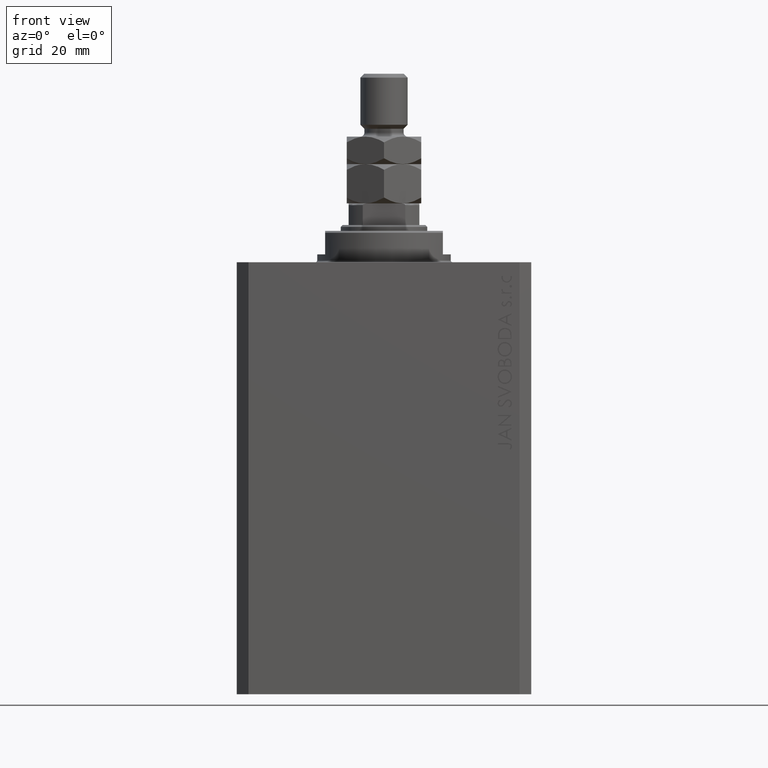
[diagram: clean part render]
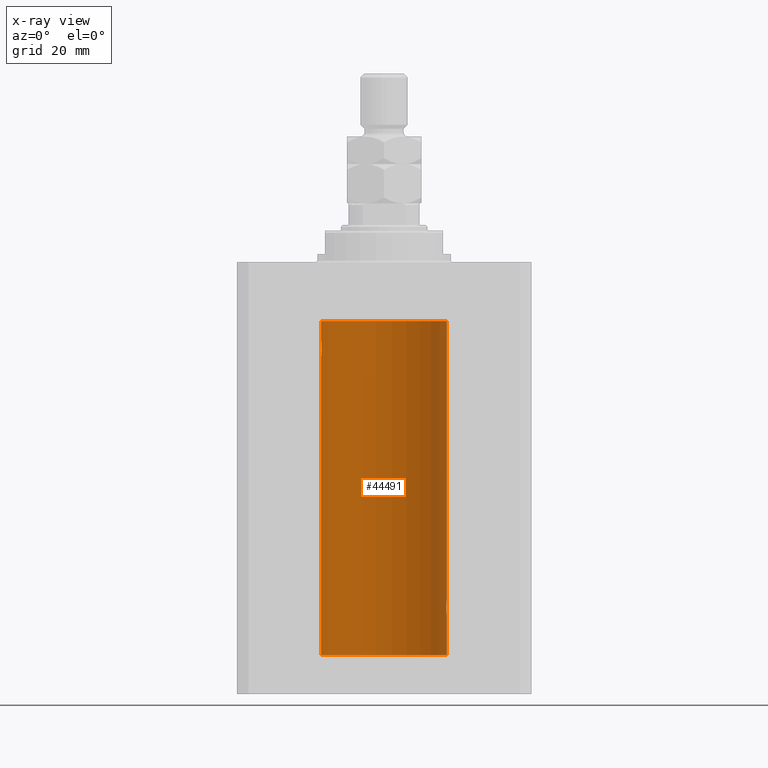
[diagram: x-ray — body ghosted, one internal face saturated and labeled with its STEP entity id]
A machine part, front view, then the same camera in x-ray: the body is ghosted and one INTERNAL B-rep face — a face not visible from any outside direction — is saturated and labeled: STEP entity #44491.
In plain terms, the highlighted cylindrical surface (partial cylindrical patch) has radius 16 mm, axis along (0, 0, 1).
Its self-contained STEP definition (entity closure, byte-faithful):
#1509 = CARTESIAN_POINT ( 'NONE',  ( 15.95380611548778660, 1.219810915946573759, -89.59032870701324214 ) ) ;
#1916 = VERTEX_POINT ( 'NONE', #5781 ) ;
#2023 = VERTEX_POINT ( 'NONE', #3538 ) ;
#2177 = CYLINDRICAL_SURFACE ( 'NONE', #16053, 16.00000000000000000 ) ;
#2767 = CARTESIAN_POINT ( 'NONE',  ( -16.00000000000000000, 1.959434878635765131E-15, -15.00000000000000000 ) ) ;
#2859 = CARTESIAN_POINT ( 'NONE',  ( -15.92092783521423272, 1.590393755196006786, -23.21967657442277755 ) ) ;
#2912 = CARTESIAN_POINT ( 'NONE',  ( 15.99834953062734222, 0.2631943783489354982, -86.01308452963878892 ) ) ;
#3031 = B_SPLINE_CURVE_WITH_KNOTS ( 'NONE', 3,
 ( #5890, #37407, #40850, #29301, #17020, #18665, #18418, #17934, #33705, #21877, #48256, #14472, #44791, #26067, #7292, #20966, #22357, #32079, #28134, #2859, #43155, #36008, #13303, #28376, #43400, #32984, #48007, #14225, #44313, #10515 ),
 .UNSPECIFIED., .F., .F.,
 ( 4, 2, 2, 2, 2, 2, 2, 2, 2, 2, 2, 2, 2, 2, 4 ),
 ( 7.909002969168862706E-19, 0.0003911894522871180884, 0.0007823789045742353095, 0.001173568356861352802, 0.001564757809148469968, 0.002347136713722698664, 0.003129515618296926493, 0.003520705070584046262, 0.003911894522871165597, 0.004303083975158284932, 0.004694273427445404268, 0.005085462879732523603, 0.005476652332019642938, 0.005867841784306762273, 0.006259031236593881609 ),
 .UNSPECIFIED. ) ;
#3156 = CARTESIAN_POINT ( 'NONE',  ( 15.87450786638751055, 2.000000000000297984, -87.86943869497294202 ) ) ;
#3403 = CARTESIAN_POINT ( 'NONE',  ( 15.88249567060696243, 1.935716055827872539, -87.48027816021618719 ) ) ;
#3538 = CARTESIAN_POINT ( 'NONE',  ( 16.00000000000000000, 0.000000000000000000, -100.0999999999999943 ) ) ;
#3557 = B_SPLINE_CURVE_WITH_KNOTS ( 'NONE', 3,
 ( #29602, #3156, #33036, #3403, #25637, #40675, #25389, #36742, #6866, #18227, #29109, #21691, #13797, #21445, #48314, #2912, #14773, #18477 ),
 .UNSPECIFIED., .F., .F.,
 ( 4, 2, 2, 2, 2, 2, 2, 2, 4 ),
 ( 0.003130250677538718058, 0.003521348247420690372, 0.003912445817302662686, 0.004303543387184635000, 0.004694640957066607313, 0.005085738526948579627, 0.005476836096830552808, 0.005867933666712525122, 0.006259031236594497435 ),
 .UNSPECIFIED. ) ;
#5206 = CARTESIAN_POINT ( 'NONE',  ( 15.88135773388169092, 1.947448446433282854, -88.52472455433247944 ) ) ;
#5781 = CARTESIAN_POINT ( 'NONE',  ( -16.00000000000000000, 8.139613661842072923E-16, -20.00000000000000000 ) ) ;
#5890 = CARTESIAN_POINT ( 'NONE',  ( -16.00000000000000000, 8.139613661842072923E-16, -20.00000000000000000 ) ) ;
#6866 = CARTESIAN_POINT ( 'NONE',  ( 15.92911104305801828, 1.507378839264603476, -86.67893664295412748 ) ) ;
#7099 = CARTESIAN_POINT ( 'NONE',  ( 16.00000000000000000, 3.524002214059393877E-15, -90.00000000000000000 ) ) ;
#7191 = VERTEX_POINT ( 'NONE', #34252 ) ;
#7199 = AXIS2_PLACEMENT_3D ( 'NONE', #34834, #31638, #35087 ) ;
#7292 = CARTESIAN_POINT ( 'NONE',  ( -15.87616016863256618, 1.987008272775798723, -22.26251583007899626 ) ) ;
#7853 = LINE ( 'NONE', #23405, #27016 ) ;
#10515 = CARTESIAN_POINT ( 'NONE',  ( -16.00000000000000000, 1.959434851239607631E-15, -23.99999999999999645 ) ) ;
#10821 = DIRECTION ( 'NONE',  ( -0.000000000000000000, -0.000000000000000000, 1.000000000000000000 ) ) ;
#11194 = ORIENTED_EDGE ( 'NONE', *, *, #15640, .T. ) ;
#11807 = B_SPLINE_CURVE_WITH_KNOTS ( 'NONE', 3,
 ( #28670, #16813, #24702, #39756, #13107, #43688, #31634, #1509, #46404, #12615, #27682, #5206, #16564, #46652 ),
 .UNSPECIFIED., .F., .F.,
 ( 4, 2, 2, 2, 2, 2, 4 ),
 ( 3.424160547694500162E-18, 0.0003912813346923356916, 0.0007825626693846680221, 0.001173844004077000082, 0.001565125338769331924, 0.002347688008154024883, 0.003130250677538718058 ),
 .UNSPECIFIED. ) ;
#12615 = CARTESIAN_POINT ( 'NONE',  ( 15.92096875784782739, 1.599058044721133331, -89.22922593843965444 ) ) ;
#13107 = CARTESIAN_POINT ( 'NONE',  ( 15.98743782203464825, 0.6453927552190293904, -89.89754035852679692 ) ) ;
#13303 = CARTESIAN_POINT ( 'NONE',  ( -15.95377581882983442, 1.220169175415122931, -23.59001528100121803 ) ) ;
#13797 = CARTESIAN_POINT ( 'NONE',  ( 15.97588373855009536, 0.8864683965309503311, -86.20240655627672766 ) ) ;
#14185 = ORIENTED_EDGE ( 'NONE', *, *, #22660, .F. ) ;
#14225 = CARTESIAN_POINT ( 'NONE',  ( -15.99834873924246104, 0.2632563459770838055, -23.98690924832126115 ) ) ;
#14251 = VERTEX_POINT ( 'NONE', #42146 ) ;
#14472 = CARTESIAN_POINT ( 'NONE',  ( -15.88137861827787134, 1.947280337074169587, -21.47468243540596333 ) ) ;
#14773 = CARTESIAN_POINT ( 'NONE',  ( 16.00000000000000000, 0.1305637488590863926, -85.99999999999998579 ) ) ;
#15640 = EDGE_CURVE ( 'NONE', #1916, #44397, #3031, .T. ) ;
#16053 = AXIS2_PLACEMENT_3D ( 'NONE', #39707, #29355, #44367 ) ;
#16564 = CARTESIAN_POINT ( 'NONE',  ( 15.87450786638751410, 2.000000000000297096, -88.26124530359815878 ) ) ;
#16813 = CARTESIAN_POINT ( 'NONE',  ( 15.99999999999999645, 0.1323149458028788361, -90.00000000000002842 ) ) ;
#17020 = CARTESIAN_POINT ( 'NONE',  ( -15.98744362947834929, 0.6452446332038160870, -20.10241129944407490 ) ) ;
#17934 = CARTESIAN_POINT ( 'NONE',  ( -15.95382484008323409, 1.219564485341772198, -20.40948495147901554 ) ) ;
#18227 = CARTESIAN_POINT ( 'NONE',  ( 15.94566414814287469, 1.320819617421907788, -86.49240758272487994 ) ) ;
#18418 = CARTESIAN_POINT ( 'NONE',  ( -15.96895041604535770, 1.002241074716284874, -20.26431901501738153 ) ) ;
#18477 = CARTESIAN_POINT ( 'NONE',  ( 16.00000000000000000, -2.738688404655786685E-23, -86.00000000000000000 ) ) ;
#18665 = CARTESIAN_POINT ( 'NONE',  ( -15.97583181162461052, 0.8874076679346778462, -20.20286585251778888 ) ) ;
#19754 = ORIENTED_EDGE ( 'NONE', *, *, #40577, .T. ) ;
#19821 = CIRCLE ( 'NONE', #7199, 16.00000000000000000 ) ;
#20966 = CARTESIAN_POINT ( 'NONE',  ( -15.88247600692092831, 1.935876924222084350, -22.51913097710111700 ) ) ;
#21135 = VERTEX_POINT ( 'NONE', #7099 ) ;
#21178 = CIRCLE ( 'NONE', #25121, 16.00000000000000000 ) ;
#21445 = CARTESIAN_POINT ( 'NONE',  ( 15.98747899434752817, 0.6443623600228916004, -86.10211550510818768 ) ) ;
#21691 = CARTESIAN_POINT ( 'NONE',  ( 15.96887171920781689, 1.003448269354837441, -86.26505182542071282 ) ) ;
#21877 = CARTESIAN_POINT ( 'NONE',  ( -15.92099550861380131, 1.598790766515155282, -20.77043888260214644 ) ) ;
#22357 = CARTESIAN_POINT ( 'NONE',  ( -15.88709929148890510, 1.898058445420892637, -22.64386968033013403 ) ) ;
#22384 = VERTEX_POINT ( 'NONE', #24181 ) ;
#22572 = ORIENTED_EDGE ( 'NONE', *, *, #38387, .F. ) ;
#22660 = EDGE_CURVE ( 'NONE', #1916, #34272, #29609, .T. ) ;
#23405 = CARTESIAN_POINT ( 'NONE',  ( 16.00000000000000000, 0.000000000000000000, -100.0999999999999943 ) ) ;
#23617 = DIRECTION ( 'NONE',  ( -0.000000000000000000, -0.000000000000000000, 1.000000000000000000 ) ) ;
#24181 = CARTESIAN_POINT ( 'NONE',  ( 16.00000000000000000, -2.738688404655786685E-23, -86.00000000000000000 ) ) ;
#24702 = CARTESIAN_POINT ( 'NONE',  ( 15.99836014839681830, 0.2623923436743452187, -89.98699919334814012 ) ) ;
#25003 = DIRECTION ( 'NONE',  ( 1.000000000000000000, 0.000000000000000000, 0.000000000000000000 ) ) ;
#25121 = AXIS2_PLACEMENT_3D ( 'NONE', #28729, #43251, #25003 ) ;
#25389 = CARTESIAN_POINT ( 'NONE',  ( 15.90582997788426312, 1.734897462761020082, -86.99646332855050446 ) ) ;
#25637 = CARTESIAN_POINT ( 'NONE',  ( 15.88712192135845491, 1.897869642555071179, -87.35557946728211220 ) ) ;
#26067 = CARTESIAN_POINT ( 'NONE',  ( -15.87450182760079542, 2.000047931387149092, -22.12985308350499380 ) ) ;
#26453 = CARTESIAN_POINT ( 'NONE',  ( -16.00000000000000000, 1.959434878635765131E-15, -100.0999999999999943 ) ) ;
#26500 = ORIENTED_EDGE ( 'NONE', *, *, #41897, .T. ) ;
#27016 = VECTOR ( 'NONE', #46091, 1000.000000000000000 ) ;
#27571 = EDGE_CURVE ( 'NONE', #7191, #44397, #38510, .T. ) ;
#27682 = CARTESIAN_POINT ( 'NONE',  ( 15.90454527605181667, 1.748004143318092174, -89.00616739381551668 ) ) ;
#28134 = CARTESIAN_POINT ( 'NONE',  ( -15.90580292899658055, 1.735145127817749655, -23.00311247035039486 ) ) ;
#28218 = EDGE_CURVE ( 'NONE', #46797, #34272, #21178, .T. ) ;
#28376 = CARTESIAN_POINT ( 'NONE',  ( -15.96885838080210362, 1.003662148334370174, -23.73482670674955486 ) ) ;
#28670 = CARTESIAN_POINT ( 'NONE',  ( 16.00000000000000000, 3.524002214059393877E-15, -90.00000000000000000 ) ) ;
#28729 = CARTESIAN_POINT ( 'NONE',  ( 0.000000000000000000, 0.000000000000000000, -15.00000000000000000 ) ) ;
#28872 = FACE_OUTER_BOUND ( 'NONE', #38843, .T. ) ;
#29109 = CARTESIAN_POINT ( 'NONE',  ( 15.95379436193629985, 1.219925354616377966, -86.40980009844315646 ) ) ;
#29229 = CARTESIAN_POINT ( 'NONE',  ( 16.00000000000000000, 0.000000000000000000, -100.0999999999999943 ) ) ;
#29301 = CARTESIAN_POINT ( 'NONE',  ( -15.99211983514074298, 0.5181437283162074747, -20.06388673317935911 ) ) ;
#29355 = DIRECTION ( 'NONE',  ( -0.000000000000000000, -0.000000000000000000, 1.000000000000000000 ) ) ;
#29602 = CARTESIAN_POINT ( 'NONE',  ( 15.87450786638750699, 2.000000000000297096, -88.00000000000000000 ) ) ;
#29609 = LINE ( 'NONE', #45099, #39449 ) ;
#31634 = CARTESIAN_POINT ( 'NONE',  ( 15.96893716441426214, 1.002454028984434808, -89.73556042441214231 ) ) ;
#31638 = DIRECTION ( 'NONE',  ( 0.000000000000000000, 0.000000000000000000, 1.000000000000000000 ) ) ;
#31649 = VECTOR ( 'NONE', #23617, 1000.000000000000000 ) ;
#31993 = ORIENTED_EDGE ( 'NONE', *, *, #35635, .T. ) ;
#32079 = CARTESIAN_POINT ( 'NONE',  ( -15.89876304682112362, 1.797743958659264507, -22.88617757057269841 ) ) ;
#32984 = CARTESIAN_POINT ( 'NONE',  ( -15.98747331501412461, 0.6445079780200578812, -23.89783726498894723 ) ) ;
#33036 = CARTESIAN_POINT ( 'NONE',  ( 15.87617168140110380, 1.986916736633999037, -87.73680934434936773 ) ) ;
#33705 = CARTESIAN_POINT ( 'NONE',  ( -15.94553003295877680, 1.322357532253827461, -20.49389287531754889 ) ) ;
#34252 = CARTESIAN_POINT ( 'NONE',  ( -16.00000000000000000, 1.959434878635765131E-15, -100.0999999999999943 ) ) ;
#34272 = VERTEX_POINT ( 'NONE', #2767 ) ;
#34479 = ORIENTED_EDGE ( 'NONE', *, *, #28218, .T. ) ;
#34834 = CARTESIAN_POINT ( 'NONE',  ( 0.000000000000000000, 0.000000000000000000, -100.0999999999999943 ) ) ;
#35087 = DIRECTION ( 'NONE',  ( 1.000000000000000000, 0.000000000000000000, 0.000000000000000000 ) ) ;
#35635 = EDGE_CURVE ( 'NONE', #2023, #21135, #42600, .T. ) ;
#36008 = CARTESIAN_POINT ( 'NONE',  ( -15.94564302722881877, 1.321075116345886924, -23.50737160312428742 ) ) ;
#36742 = CARTESIAN_POINT ( 'NONE',  ( 15.92095407913750726, 1.590131347295332009, -86.77998469042918828 ) ) ;
#37407 = CARTESIAN_POINT ( 'NONE',  ( -15.99999999999999645, 0.1322838750249263340, -20.00000000000000000 ) ) ;
#38387 = EDGE_CURVE ( 'NONE', #2023, #7191, #19821, .T. ) ;
#38510 = LINE ( 'NONE', #26453, #46337 ) ;
#38843 = EDGE_LOOP ( 'NONE', ( #43478, #22572, #31993, #19754, #26500, #44453, #34479, #14185, #11194 ) ) ;
#39449 = VECTOR ( 'NONE', #10821, 1000.000000000000000 ) ;
#39707 = CARTESIAN_POINT ( 'NONE',  ( 0.000000000000000000, 0.000000000000000000, -100.0999999999999943 ) ) ;
#39756 = CARTESIAN_POINT ( 'NONE',  ( 15.99211620657850474, 0.5182628822511399225, -89.93608344894170159 ) ) ;
#40577 = EDGE_CURVE ( 'NONE', #21135, #14251, #11807, .T. ) ;
#40675 = CARTESIAN_POINT ( 'NONE',  ( 15.89878974374255449, 1.797508500259969777, -87.11334888788564967 ) ) ;
#40850 = CARTESIAN_POINT ( 'NONE',  ( -15.99836091803360283, 0.2623312429553310565, -20.01299475991587329 ) ) ;
#41484 = DIRECTION ( 'NONE',  ( -0.000000000000000000, -0.000000000000000000, 1.000000000000000000 ) ) ;
#41632 = CARTESIAN_POINT ( 'NONE',  ( 16.00000000000000000, 0.000000000000000000, -15.00000000000000000 ) ) ;
#41897 = EDGE_CURVE ( 'NONE', #14251, #22384, #3557, .T. ) ;
#42146 = CARTESIAN_POINT ( 'NONE',  ( 15.87450786638750699, 2.000000000000297096, -88.00000000000000000 ) ) ;
#42189 = EDGE_CURVE ( 'NONE', #22384, #46797, #7853, .T. ) ;
#42600 = LINE ( 'NONE', #29229, #31649 ) ;
#43155 = CARTESIAN_POINT ( 'NONE',  ( -15.92908549642226745, 1.507649250492136606, -23.32075824828932653 ) ) ;
#43251 = DIRECTION ( 'NONE',  ( 0.000000000000000000, 0.000000000000000000, 1.000000000000000000 ) ) ;
#43400 = CARTESIAN_POINT ( 'NONE',  ( -15.97587307151818159, 0.8866640484200133399, -23.79749928605040665 ) ) ;
#43478 = ORIENTED_EDGE ( 'NONE', *, *, #27571, .F. ) ;
#43688 = CARTESIAN_POINT ( 'NONE',  ( 15.97582125337101999, 0.8876008124445644576, -89.79704090617748591 ) ) ;
#44313 = CARTESIAN_POINT ( 'NONE',  ( -16.00000000000000000, 0.1305944228192325030, -23.99999999999999645 ) ) ;
#44367 = DIRECTION ( 'NONE',  ( 1.000000000000000000, 0.000000000000000000, 0.000000000000000000 ) ) ;
#44397 = VERTEX_POINT ( 'NONE', #46354 ) ;
#44453 = ORIENTED_EDGE ( 'NONE', *, *, #42189, .T. ) ;
#44491 = ADVANCED_FACE ( 'NONE', ( #28872 ), #2177, .F. ) ;
#44791 = CARTESIAN_POINT ( 'NONE',  ( -15.87451999516785506, 1.999903730784163169, -21.73808537237744432 ) ) ;
#45099 = CARTESIAN_POINT ( 'NONE',  ( -16.00000000000000000, 1.959434878635765131E-15, -100.0999999999999943 ) ) ;
#46091 = DIRECTION ( 'NONE',  ( -0.000000000000000000, -0.000000000000000000, 1.000000000000000000 ) ) ;
#46337 = VECTOR ( 'NONE', #41484, 1000.000000000000000 ) ;
#46354 = CARTESIAN_POINT ( 'NONE',  ( -16.00000000000000000, 1.959434851239607631E-15, -23.99999999999999645 ) ) ;
#46404 = CARTESIAN_POINT ( 'NONE',  ( 15.94550883254178331, 1.322613426523511881, -89.50588495029012392 ) ) ;
#46652 = CARTESIAN_POINT ( 'NONE',  ( 15.87450786638750699, 2.000000000000297096, -88.00000000000000000 ) ) ;
#46797 = VERTEX_POINT ( 'NONE', #41632 ) ;
#48007 = CARTESIAN_POINT ( 'NONE',  ( -15.99206840425678955, 0.5198215460038748681, -23.93569052926128649 ) ) ;
#48256 = CARTESIAN_POINT ( 'NONE',  ( -15.90457341008072412, 1.747750603376305278, -20.99340818440418488 ) ) ;
#48314 = CARTESIAN_POINT ( 'NONE',  ( 15.99207203775707065, 0.5197027266689088210, -86.06427960618061945 ) ) ;